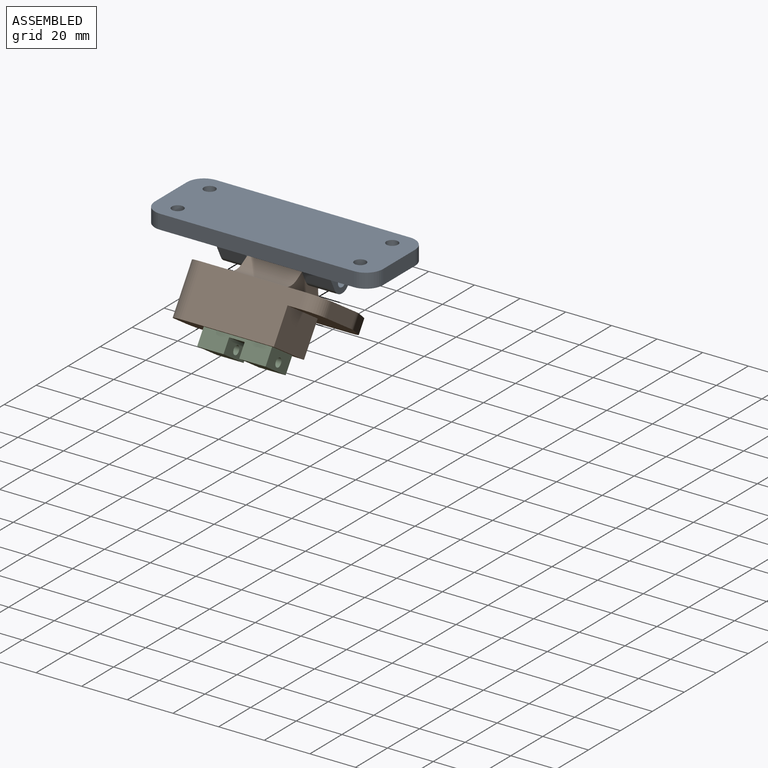
[diagram: assembled view]
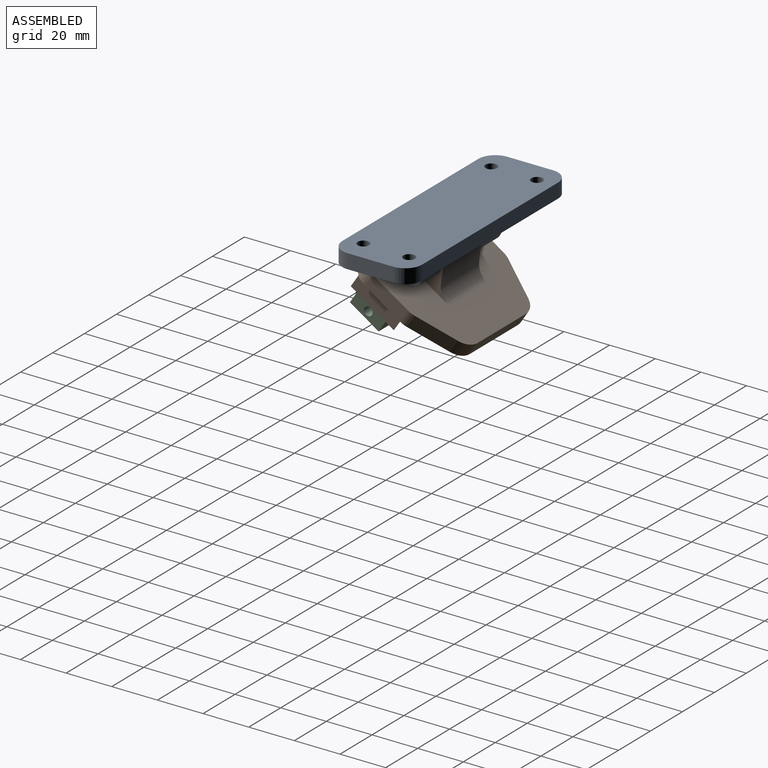
[diagram: assembled view, second angle]
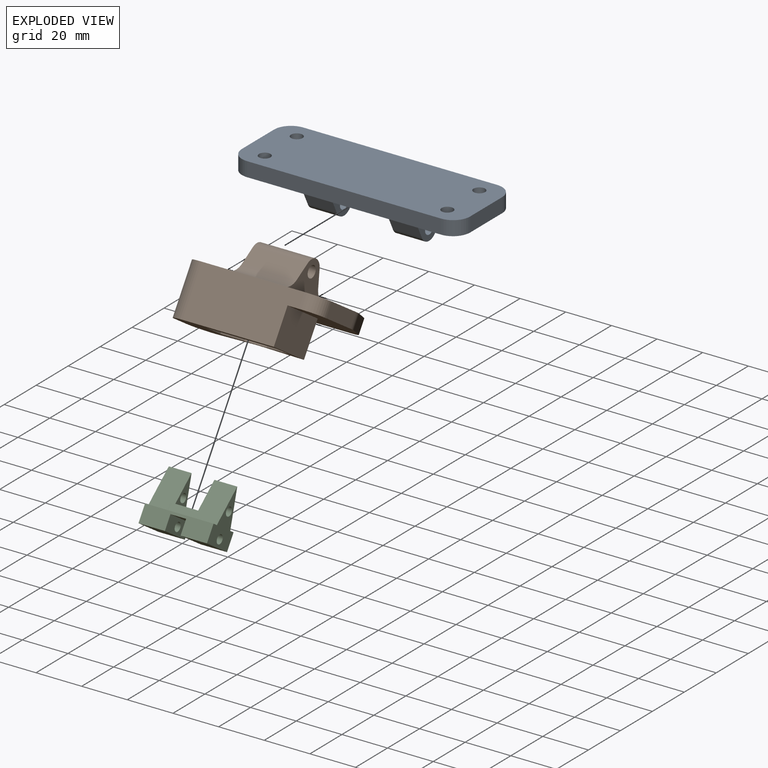
[diagram: exploded view]
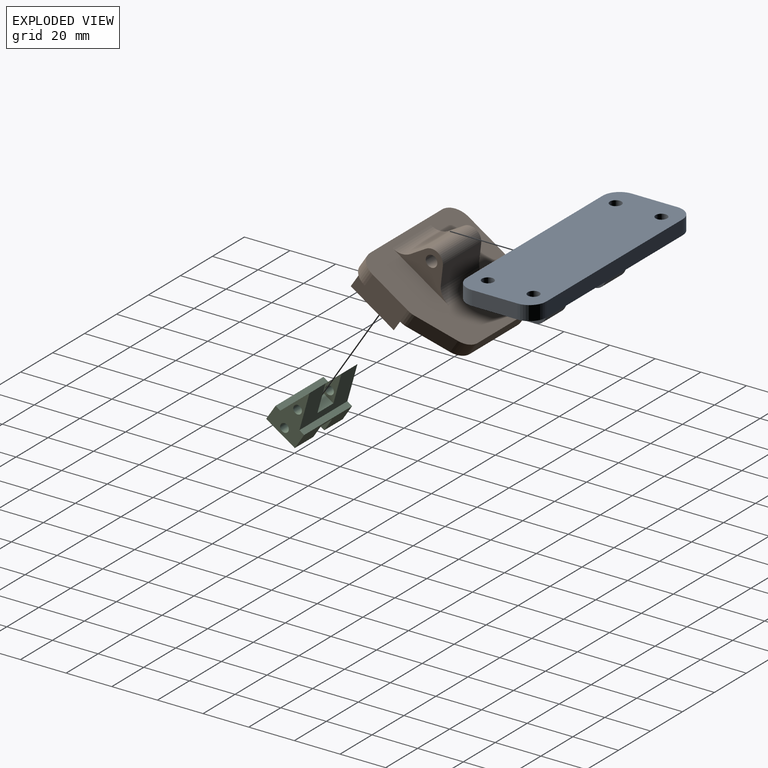
[diagram: exploded view, second angle]
ASSEMBLY  parts=3 mates=3
PART A: 30 faces, bbox 100x35x20.2 mm
  f0: plane 20x6.35mm, normal (-1,0,0), area 127mm2, adj f1,f11,f12,f13
  f1: cylinder r=7.5mm len=7.5mm, axis (0,0,-1), area 74.8mm2, adj f0,f2,f12,f13
  f2: plane 85x6.35mm, normal (0,-1,0), area 539.8mm2, adj f1,f3,f12,f13
  f3: cylinder r=7.5mm len=7.5mm, axis (0,0,-1), area 74.8mm2, adj f2,f4,f12,f13
  f4: plane 20x6.35mm, normal (1,0,0), area 127mm2, adj f3,f5,f12,f13
  f5: cylinder r=7.5mm len=7.5mm, axis (0,0,-1), area 74.8mm2, adj f4,f6,f12,f13
  f6: plane 85x6.35mm, normal (0,1,0), area 539.8mm2, adj f5,f11,f12,f13
  f7: cylinder r=2.54mm len=6.35mm, axis (0,0,-1), area 101.3mm2, adj f12,f13
  f8: cylinder r=2.54mm len=6.35mm, axis (0,0,-1), area 101.3mm2, adj f12,f13
  f9: cylinder r=2.54mm len=6.35mm, axis (0,0,-1), area 101.3mm2, adj f12,f13
  f10: cylinder r=2.54mm len=6.35mm, axis (0,0,-1), area 101.3mm2, adj f12,f13
  f11: cylinder r=7.5mm len=7.5mm, axis (0,0,-1), area 74.8mm2, adj f0,f6,f12,f13
  f12: plane 100x35mm, normal (0,0,1), area 3370.6mm2, adj f0,f1,f2,f3,f4,f5,f6,f7
  f13: plane 100x35mm, normal (0,0,-1), area 2627.2mm2, adj f0,f1,f2,f3,f4,f5,f6,f7
  f14: plane 12.7x6.91mm, normal (0,-0.89,-0.45), area 98.1mm2, adj f15,f18,f19,f29
  f15: cylinder r=5mm len=12.7mm, axis (1,0,0), area 140.6mm2, adj f14,f16,f18,f19
  f16: plane 12.7x6.91mm, normal (0,0.89,-0.45), area 98.1mm2, adj f15,f18,f19,f28
  f17: cylinder r=2.54mm len=12.7mm, axis (1,0,0), area 202.7mm2, adj f18,f19
  f18: plane 29.27x13.82mm, normal (-1,0,0), area 164.7mm2, adj f13,f14,f15,f16,f17,f28,f29
  f19: plane 29.27x13.82mm, normal (1,0,0), area 164.7mm2, adj f13,f14,f15,f16,f17,f28,f29
  f20: plane 12.7x6.91mm, normal (0,-0.89,-0.45), area 98.1mm2, adj f21,f24,f25,f26
  f21: cylinder r=5mm len=12.7mm, axis (-1,0,0), area 140.6mm2, adj f20,f22,f24,f25
  f22: plane 12.7x6.91mm, normal (0,0.89,-0.45), area 98.1mm2, adj f21,f24,f25,f27
  f23: cylinder r=2.54mm len=12.7mm, axis (-1,0,0), area 202.7mm2, adj f24,f25
  f24: plane 29.27x13.82mm, normal (1,0,0), area 164.7mm2, adj f13,f20,f21,f22,f23,f26,f27
  f25: plane 29.27x13.82mm, normal (-1,0,0), area 164.7mm2, adj f13,f20,f21,f22,f23,f26,f27
  f26: cylinder r=7.5mm len=12.7mm, axis (1,0,0), area 105.5mm2, adj f13,f20,f24,f25
  f27: cylinder r=7.5mm len=12.7mm, axis (-1,0,0), area 105.5mm2, adj f13,f22,f24,f25
  f28: cylinder r=7.5mm len=12.7mm, axis (-1,0,0), area 105.5mm2, adj f13,f16,f18,f19
  f29: cylinder r=7.5mm len=12.7mm, axis (1,0,0), area 105.5mm2, adj f13,f14,f18,f19
PART B: 41 faces, bbox 60x50x35.8 mm
  f0: plane 45x22.03mm, normal (0,-1,0), area 912.8mm2, adj f2,f19,f26,f27,f33,f40
  f1: plane 18.41x6.35mm, normal (1,0,0), area 116.9mm2, adj f2,f18,f26,f27
  f2: cylinder r=7.5mm len=7.5mm, axis (0,0,1), area 74.8mm2, adj f0,f1,f26,f27
  f3: plane 15.68x10.25mm, normal (0,-0.95,-0.32), area 169.4mm2, adj f5,f9,f33,f34
  f4: plane 15.68x10.25mm, normal (0,-0.95,-0.32), area 169.4mm2, adj f6,f10,f33,f35
  f5: plane 15.68x10.25mm, normal (0,0.95,-0.32), area 169.4mm2, adj f3,f9,f33,f36
  f6: plane 15.68x10.25mm, normal (0,0.95,-0.32), area 169.4mm2, adj f4,f10,f33,f37
  f7: plane 10x3.16mm, normal (0,0,1), area 25.2mm2, adj f8,f31,f32,f34,f35,f39
  f8: plane 18.62x15.68mm, normal (0.26,0.97,0), area 270.5mm2, adj f7,f26,f30,f31,f33,f34
  f9: plane 15.68x10.5mm, normal (1,0,0), area 82.3mm2, adj f3,f5,f33
  f10: plane 15.68x10.5mm, normal (-1,0,0), area 82.3mm2, adj f4,f6,f33
  f11: plane 24x6.91mm, normal (0,0.89,0.45), area 185.4mm2, adj f12,f15,f16,f28
  f12: cylinder r=5mm len=24mm, axis (-1,0,0), area 265.7mm2, adj f11,f13,f15,f16
  f13: plane 24x6.91mm, normal (0,-0.89,0.45), area 185.4mm2, adj f12,f15,f16,f29
  f14: cylinder r=2.54mm len=24mm, axis (-1,0,0), area 383mm2, adj f15,f16
  f15: plane 29.27x13.82mm, normal (1,0,0), area 164.7mm2, adj f11,f12,f13,f14,f27,f28,f29
  f16: plane 29.27x13.82mm, normal (-1,0,0), area 164.7mm2, adj f11,f12,f13,f14,f27,f28,f29
  f17: plane 16.59x7.37mm, normal (0.91,0.41,0), area 115.3mm2, adj f18,f25,f26,f27
  f18: cylinder r=7.5mm len=6.35mm, axis (0,0,1), area 19.9mm2, adj f1,f17,f26,f27
  f19: cylinder r=7.5mm len=22.03mm, axis (0,0,1), area 259.5mm2, adj f0,f20,f27,f33
  f20: plane 22.03x18.41mm, normal (-1,0,0), area 252.2mm2, adj f19,f21,f26,f27,f30,f33
  f21: cylinder r=7.5mm len=6.35mm, axis (0,0,1), area 19.9mm2, adj f20,f22,f26,f27
  f22: plane 16.59x7.37mm, normal (-0.91,0.41,0), area 115.3mm2, adj f21,f23,f26,f27
  f23: cylinder r=7.5mm len=6.85mm, axis (0,0,1), area 54.9mm2, adj f22,f24,f26,f27
  f24: plane 30.25x6.35mm, normal (0,1,0), area 192.1mm2, adj f23,f25,f26,f27
  f25: cylinder r=7.5mm len=6.85mm, axis (0,0,1), area 54.9mm2, adj f17,f24,f26,f27
  f26: plane 60x50mm, normal (0,0,-1), area 1895.5mm2, adj f0,f1,f2,f8,f17,f18,f20,f21
  f27: plane 60x50mm, normal (0,0,1), area 2039.7mm2, adj f0,f1,f2,f15,f16,f17,f18,f19
  f28: cylinder r=7.5mm len=24mm, axis (1,0,0), area 199.3mm2, adj f11,f15,f16,f27
  f29: cylinder r=7.5mm len=24mm, axis (-1,0,0), area 199.3mm2, adj f13,f15,f16,f27
  f30: cylinder r=7.5mm len=15.68mm, axis (0,0,1), area 215.4mm2, adj f8,f20,f26,f33
  f31: cylinder r=7.5mm len=5.68mm, axis (0,0,1), area 22.3mm2, adj f7,f8,f32,f33
  f32: plane 15.68x15.56mm, normal (-0.26,0.97,0), area 220.8mm2, adj f7,f26,f31,f33,f35,f40
  f33: plane 47.5x23.63mm, normal (0,0,-1), area 656.7mm2, adj f0,f3,f4,f5,f6,f8,f9,f10
  f34: plane 15.68x8.41mm, normal (1,0,0), area 72.7mm2, adj f3,f7,f8,f26,f39
  f35: plane 15.68x8.41mm, normal (-1,0,0), area 72.7mm2, adj f4,f7,f26,f32,f39
  f36: plane 15.68x5.25mm, normal (1,0,0), area 41.1mm2, adj f5,f26,f38
  f37: plane 15.68x5.25mm, normal (-1,0,0), area 41.1mm2, adj f6,f26,f38
  f38: plane 15.68x10mm, normal (0,1,0), area 156.8mm2, adj f26,f33,f36,f37
  f39: plane 10x5.68mm, normal (0,-1,0), area 56.8mm2, adj f7,f33,f34,f35
  f40: plane 22.56x15.68mm, normal (1,0,0), area 353.6mm2, adj f0,f26,f32,f33
PART C: 20 faces, bbox 23.2x30x15 mm
  f0: plane 15x11.57mm, normal (-1,0,0), area 173.6mm2, adj f7,f8,f12,f14
  f1: cylinder r=1.91mm len=11.57mm, axis (0,1,0), area 138.5mm2, adj f7,f8
  f2: plane 15x11.57mm, normal (-1,0,0), area 173.6mm2, adj f6,f9,f12,f14
  f3: plane 30x15.68mm, normal (0.3,0,-0.95), area 362.4mm2, adj f4,f6,f7,f13,f15,f16,f17
  f4: plane 30x15.68mm, normal (0.3,0,0.95), area 362.4mm2, adj f3,f6,f7,f11,f15,f16,f17
  f5: cylinder r=1.91mm len=11.57mm, axis (0,1,0), area 138.5mm2, adj f6,f9
  f6: plane 23.18x15mm, normal (0,-1,0), area 168.1mm2, adj f2,f3,f4,f5,f11,f12,f13,f14
  f7: plane 23.18x15mm, normal (0,1,0), area 168.1mm2, adj f0,f1,f3,f4,f11,f12,f13,f14
  f8: plane 15x6.38mm, normal (0,-1,0), area 84.2mm2, adj f0,f1,f10,f12,f14
  f9: plane 15x6.38mm, normal (0,1,0), area 84.2mm2, adj f2,f5,f10,f12,f14
  f10: plane 15x6.86mm, normal (-1,0,0), area 102.9mm2, adj f8,f9,f12,f14
  f11: plane 30x2.5mm, normal (1,0,0), area 75mm2, adj f4,f6,f7,f12
  f12: plane 30x7.5mm, normal (0,0,1), area 181.3mm2, adj f0,f2,f6,f7,f8,f9,f10,f11
  f13: plane 30x2.5mm, normal (1,0,0), area 75mm2, adj f3,f6,f7,f14
  f14: plane 30x7.5mm, normal (0,0,-1), area 181.3mm2, adj f0,f2,f6,f7,f8,f9,f10,f13
  f15: plane 12.5x7.97mm, normal (0,-1,0), area 38.5mm2, adj f3,f4,f17,f19
  f16: plane 12.5x7.97mm, normal (0,1,0), area 38.5mm2, adj f3,f4,f17,f18
  f17: plane 10x7.97mm, normal (1,0,0), area 79.7mm2, adj f3,f4,f15,f16
  f18: cylinder r=1.9mm len=10mm, axis (0,1,0), area 119.4mm2, adj f6,f16
  f19: cylinder r=1.9mm len=10mm, axis (0,1,0), area 119.4mm2, adj f7,f15
PLACE A t=(-5.26,-39.92,9.59)mm fixed
PLACE B rot(axis=(-1,0,0),33.2deg) t=(-5.56,-32.23,17.74)mm
PLACE C rot(axis=(-0.66,-0.66,-0.36),140.7deg) t=(59.69,-47.89,-24.59)mm
MATE planar C.f13 <-> B.f33  axis (0,0.55,0.84) through (44.69,-50.75,-17.55)mm
MATE revolute A.f15 <-> B.f14  axis (-1,0,0) through (32.44,-22.42,0.77)mm
MATE planar C.f7 <-> B.f10  axis (1,0,0) through (59.69,-45.63,-21.14)mm
